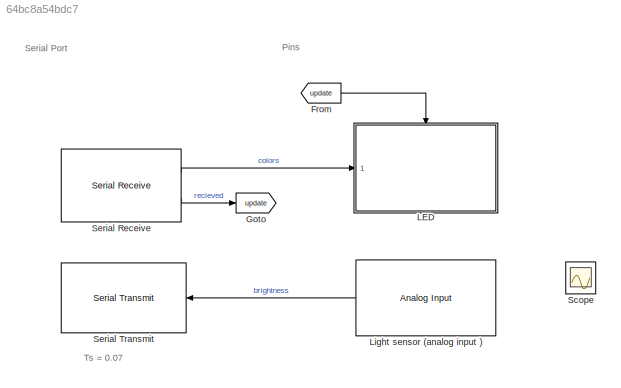
MODEL slx_64bc8a54bdc7
KIND model
CONFIG AbsTol = auto
CONFIG EnableMultiTasking = off
CONFIG FixedStep = 0.01
CONFIG MaxStep = auto
CONFIG MinStep = auto
CONFIG RelTol = 1e-3
CONFIG SampleTimeConstraint = Unconstrained
CONFIG Solver = FixedStepDiscrete
CONFIG SolverName = FixedStepDiscrete
CONFIG StartTime = 0.0
CONFIG StopTime = 10
BLOCK [From] From
  GotoTag = update
  TagVisibility = global
BLOCK [Goto] Goto
  GotoTag = update
  TagVisibility = global
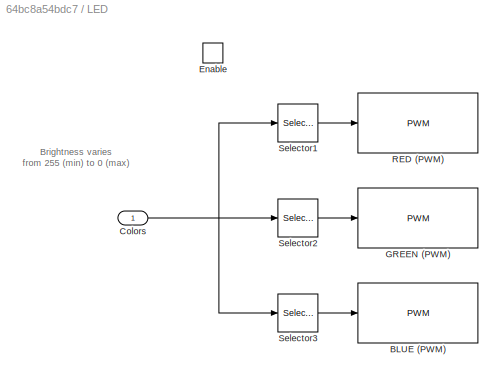
BLOCK [SubSystem] LED
  Ports = [1, 0, 1]
  RequestExecContextInheritance = off
  TreatAsAtomicUnit = on
BLOCK [Reference] LED/BLUE (PWM)  REF=arduinolib/PWM
  Ports = [1]
  SourceBlock = arduinolib/PWM
  SourceProductBaseCode = ARDUINO
  SourceProductName = Simulink Support Package for Arduino Hardware
  SourceType = Arduino PWM
BLOCK [Inport] LED/Colors
  IconDisplay = Port number
  OutDataTypeStr = uint8
BLOCK [EnablePort] LED/Enable
  Ports = []
BLOCK [Reference] LED/GREEN (PWM)  REF=arduinolib/PWM
  Ports = [1]
  SourceBlock = arduinolib/PWM
  SourceProductBaseCode = ARDUINO
  SourceProductName = Simulink Support Package for Arduino Hardware
  SourceType = Arduino PWM
BLOCK [Reference] LED/RED (PWM)  REF=arduinolib/PWM
  Ports = [1]
  SourceBlock = arduinolib/PWM
  SourceProductBaseCode = ARDUINO
  SourceProductName = Simulink Support Package for Arduino Hardware
  SourceType = Arduino PWM
BLOCK [Selector] LED/Selector1
  IndexOptions = Index vector (dialog)
  Indices = 1
  InputPortWidth = 3
  OutputSizes = 1
  Ports = [1, 1]
BLOCK [Selector] LED/Selector2
  IndexOptions = Index vector (dialog)
  Indices = 2
  InputPortWidth = 3
  OutputSizes = 1
  Ports = [1, 1]
BLOCK [Selector] LED/Selector3
  IndexOptions = Index vector (dialog)
  Indices = 3
  InputPortWidth = 3
  OutputSizes = 1
  Ports = [1, 1]
BLOCK [Reference] Light sensor (analog input )  REF=arduinolib/Analog Input
  AttributesFormatString = Ts = %<SampleTime>
  Ports = [0, 1]
  SourceBlock = arduinolib/Analog Input
  SourceProductBaseCode = ARDUINO
  SourceProductName = Simulink Support Package for Arduino Hardware
  SourceType = Arduino Analog Input
BLOCK [Scope] Scope
  Floating = off
  IOType = viewer
  NumInputPorts = 1
  Ports = []
  ScopeSpecificationString = Simulink.scopes.TimeScopeBlockCfg('CurrentConfiguration', extmgr.ConfigurationSet(extmgr.Configuration('Core','General UI',true),extmgr.Configuration('Core','Source UI',true),extmgr.Configuration('Sources','WiredSimulink',true),extmgr.Configuration('Visuals','Time Domain',true,'SerializedDisplays',{struct('MinYLimReal','-0.125','MaxYLimReal','1.125','YLabelReal','','MinYLimMag','0.00000','MaxYLimM...<+1308ch>
BLOCK [Reference] Serial Receive  REF=arduinolib/Serial Receive
  AttributesFormatString = Ts = %<SampleTime>
  Ports = [0, 2]
  SourceBlock = arduinolib/Serial Receive
  SourceProductBaseCode = ARDUINO
  SourceProductName = Simulink Support Package for Arduino Hardware
  SourceType = Arduino Serial Receive
BLOCK [Reference] Serial Transmit  REF=arduinolib/Serial Transmit
  Ports = [1]
  SourceBlock = arduinolib/Serial Transmit
  SourceProductBaseCode = ARDUINO
  SourceProductName = Simulink Support Package for Arduino Hardware
  SourceType = Arduino Serial Transmit
ANNOTATION (root): Pins
ANNOTATION (root): Serial Port
ANNOTATION (root): Ts = 0.07
ANNOTATION LED: Brightness varies from 255 (min) to 0 (max)
LINE From:1 -> LED:enable
NET LED/Colors:1 -> LED/Selector1:1, LED/Selector2:1, LED/Selector3:1
LINE LED/Selector1:1 -> LED/RED (PWM):1
LINE LED/Selector2:1 -> LED/GREEN (PWM):1
LINE LED/Selector3:1 -> LED/BLUE (PWM):1
LINE Light sensor (analog input ):1 -> Serial Transmit:1
LINE Serial Receive:1 -> LED:1
LINE Serial Receive:2 -> Goto:1
note: NET lines group one-source signal fan-out (src -> all destinations, sorted); 1:1 wires keep LINE
